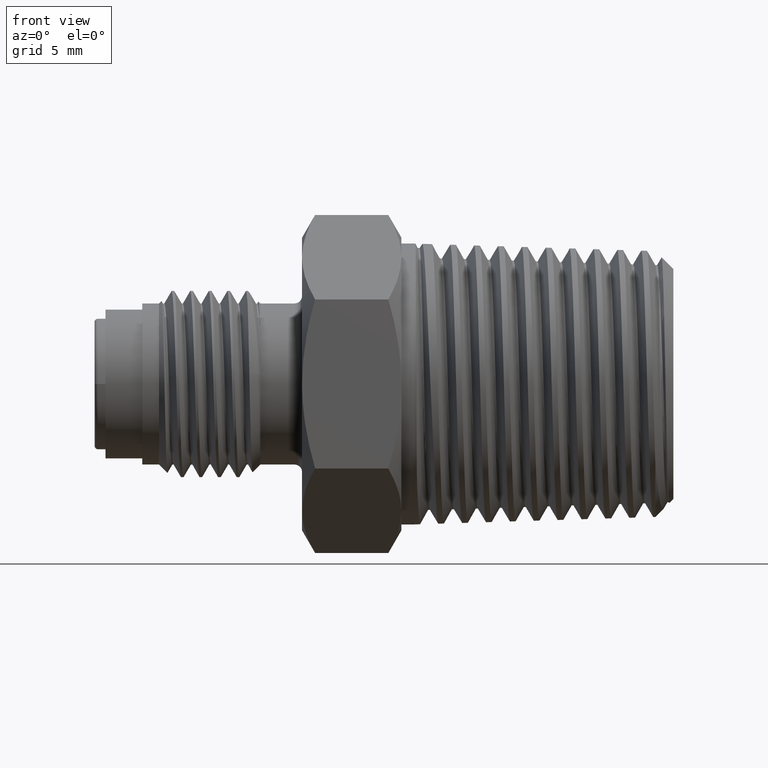
[diagram: clean part render]
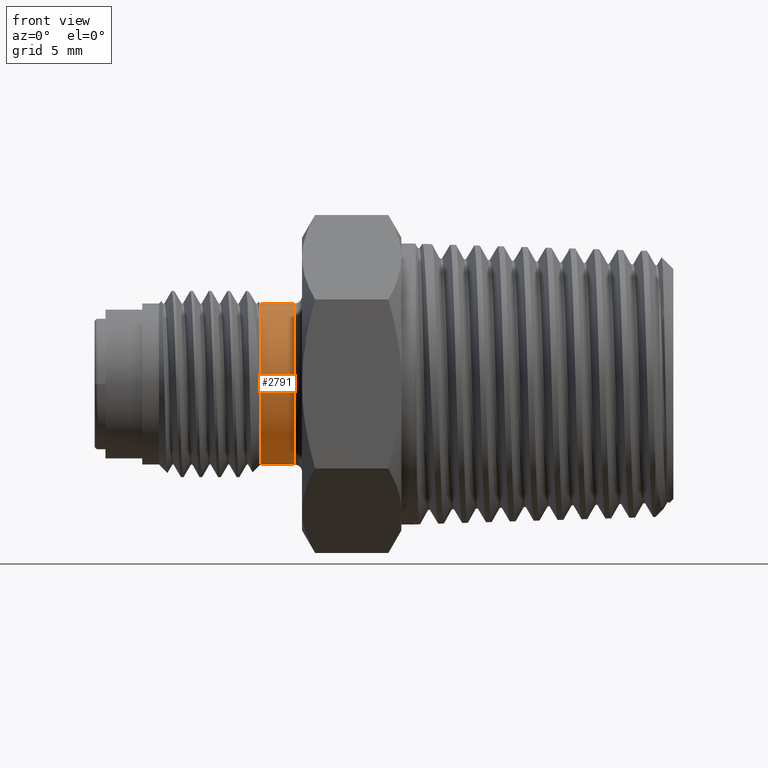
[diagram: same view with one face highlighted and labeled with its STEP entity id]
A machine part, front view. The second image highlights one B-rep face of the part: STEP entity #2791.
In plain terms, the highlighted cylindrical surface (partial cylindrical patch) has radius 6.115 mm, axis along (1, -0, -0).
Its self-contained STEP definition (entity closure, byte-faithful):
#1095 = LINE ( 'NONE', #5404, #9970 ) ;
#1347 = LINE ( 'NONE', #1688, #4859 ) ;
#1688 = CARTESIAN_POINT ( 'NONE',  ( -0.7751649751045668335, -3.244069492476312449E-16, -0.2407499999999993257 ) ) ;
#2220 = CARTESIAN_POINT ( 'NONE',  ( -1.132499999999999840, -3.106198998695196205E-16, 0.2407500000000005747 ) ) ;
#2676 = VERTEX_POINT ( 'NONE', #2220 ) ;
#2791 = ADVANCED_FACE ( 'NONE', ( #9718 ), #5212, .T. ) ;
#3492 = CIRCLE ( 'NONE', #12185, 0.2407499999999999640 ) ;
#4394 = EDGE_CURVE ( 'NONE', #4958, #7783, #1347, .T. ) ;
#4638 = EDGE_CURVE ( 'NONE', #13775, #2676, #1095, .T. ) ;
#4859 = VECTOR ( 'NONE', #10394, 39.37007874015748143 ) ;
#4958 = VERTEX_POINT ( 'NONE', #5767 ) ;
#5098 = CARTESIAN_POINT ( 'NONE',  ( -0.7751649751045668335, -3.244069492476312449E-16, 6.146657985744592735E-16 ) ) ;
#5212 = CYLINDRICAL_SURFACE ( 'NONE', #8048, 0.2407499999999999640 ) ;
#5404 = CARTESIAN_POINT ( 'NONE',  ( -0.7751649751045668335, -2.949235775581586862E-16, 0.2407500000000005747 ) ) ;
#5622 = CARTESIAN_POINT ( 'NONE',  ( -1.132499999999999840, -3.244069492476312449E-16, 6.146657985744592735E-16 ) ) ;
#5767 = CARTESIAN_POINT ( 'NONE',  ( -1.234999999999999876, -2.926120567247680575E-16, -0.2407499999999993257 ) ) ;
#6514 = ORIENTED_EDGE ( 'NONE', *, *, #11883, .F. ) ;
#6647 = DIRECTION ( 'NONE',  ( 1.000000000000000000, -0.000000000000000000, -0.000000000000000000 ) ) ;
#6686 = DIRECTION ( 'NONE',  ( 1.000000000000000000, -0.000000000000000000, -0.000000000000000000 ) ) ;
#7524 = ORIENTED_EDGE ( 'NONE', *, *, #4394, .T. ) ;
#7783 = VERTEX_POINT ( 'NONE', #9416 ) ;
#8048 = AXIS2_PLACEMENT_3D ( 'NONE', #5098, #10468, #10378 ) ;
#8840 = DIRECTION ( 'NONE',  ( 0.000000000000000000, 0.000000000000000000, -1.000000000000000000 ) ) ;
#8884 = EDGE_LOOP ( 'NONE', ( #10016, #13105, #7524, #6514 ) ) ;
#9103 = AXIS2_PLACEMENT_3D ( 'NONE', #5622, #6647, #8840 ) ;
#9416 = CARTESIAN_POINT ( 'NONE',  ( -1.132499999999999840, -3.244069492476312449E-16, -0.2407499999999993257 ) ) ;
#9718 = FACE_OUTER_BOUND ( 'NONE', #8884, .T. ) ;
#9970 = VECTOR ( 'NONE', #13014, 39.37007874015748143 ) ;
#10016 = ORIENTED_EDGE ( 'NONE', *, *, #4638, .F. ) ;
#10326 = CIRCLE ( 'NONE', #9103, 0.2407499999999999640 ) ;
#10378 = DIRECTION ( 'NONE',  ( 0.000000000000000000, 0.000000000000000000, -1.000000000000000000 ) ) ;
#10394 = DIRECTION ( 'NONE',  ( 1.000000000000000000, -0.000000000000000000, -0.000000000000000000 ) ) ;
#10468 = DIRECTION ( 'NONE',  ( 1.000000000000000000, -0.000000000000000000, -0.000000000000000000 ) ) ;
#10895 = DIRECTION ( 'NONE',  ( 0.000000000000000000, 0.000000000000000000, -1.000000000000000000 ) ) ;
#11883 = EDGE_CURVE ( 'NONE', #2676, #7783, #10326, .T. ) ;
#12030 = CARTESIAN_POINT ( 'NONE',  ( -1.234999999999999876, -3.244069492476312449E-16, 6.146657985744592735E-16 ) ) ;
#12185 = AXIS2_PLACEMENT_3D ( 'NONE', #12030, #6686, #10895 ) ;
#12764 = CARTESIAN_POINT ( 'NONE',  ( -1.234999999999999876, -3.244069492476312449E-16, 0.2407500000000005747 ) ) ;
#13014 = DIRECTION ( 'NONE',  ( 1.000000000000000000, -0.000000000000000000, -0.000000000000000000 ) ) ;
#13105 = ORIENTED_EDGE ( 'NONE', *, *, #13939, .T. ) ;
#13775 = VERTEX_POINT ( 'NONE', #12764 ) ;
#13939 = EDGE_CURVE ( 'NONE', #13775, #4958, #3492, .T. ) ;